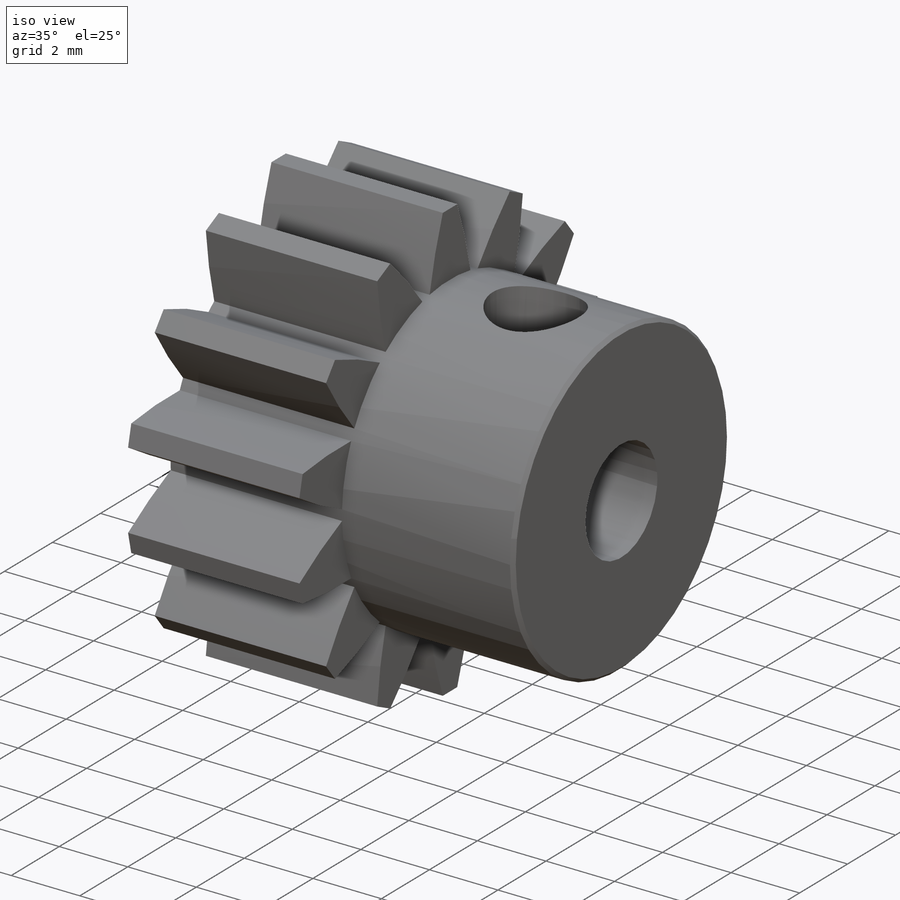
[diagram: iso view]
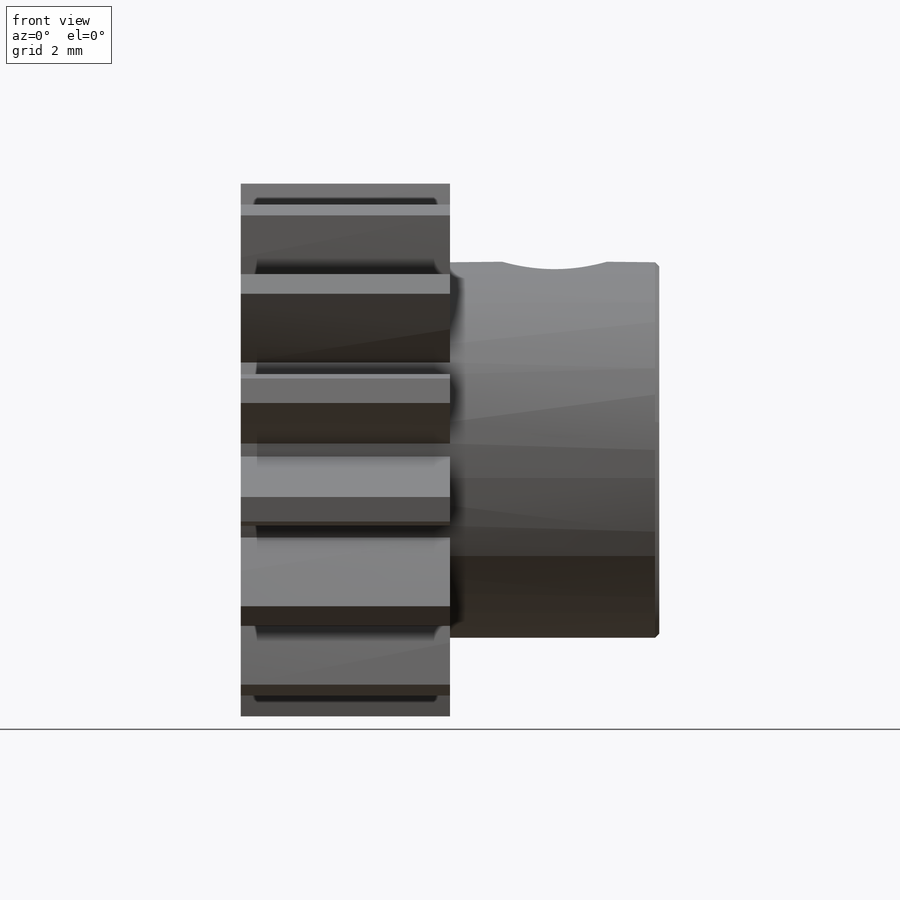
[diagram: front view]
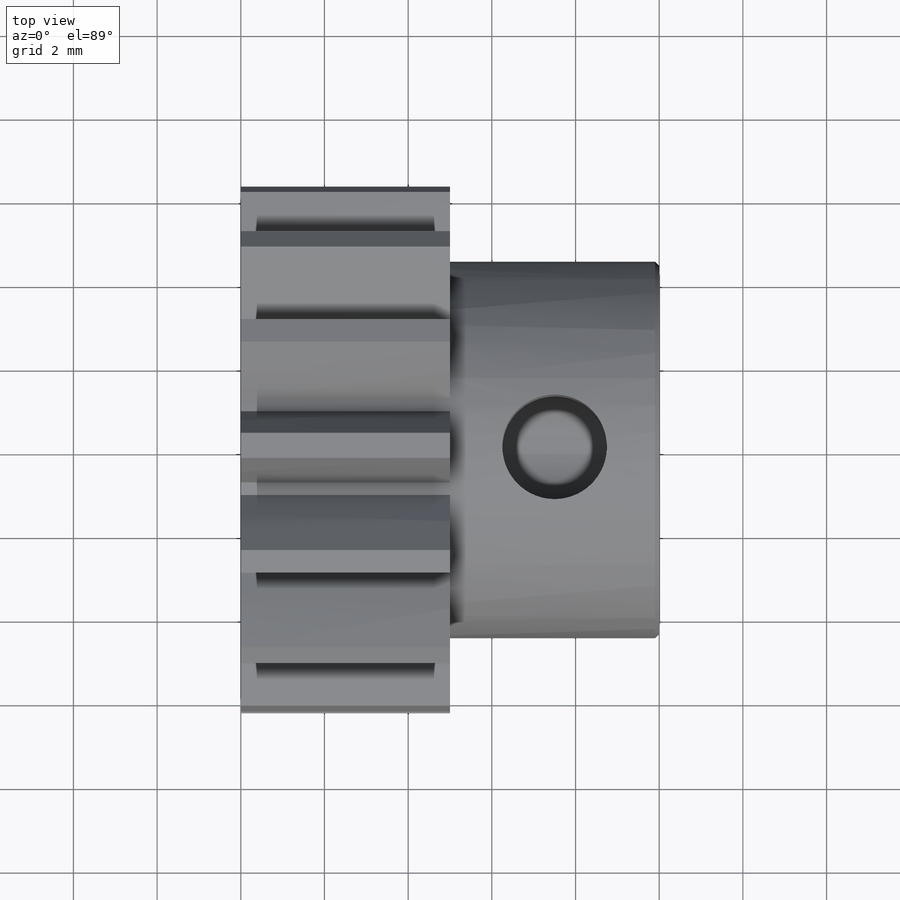
[diagram: top view]
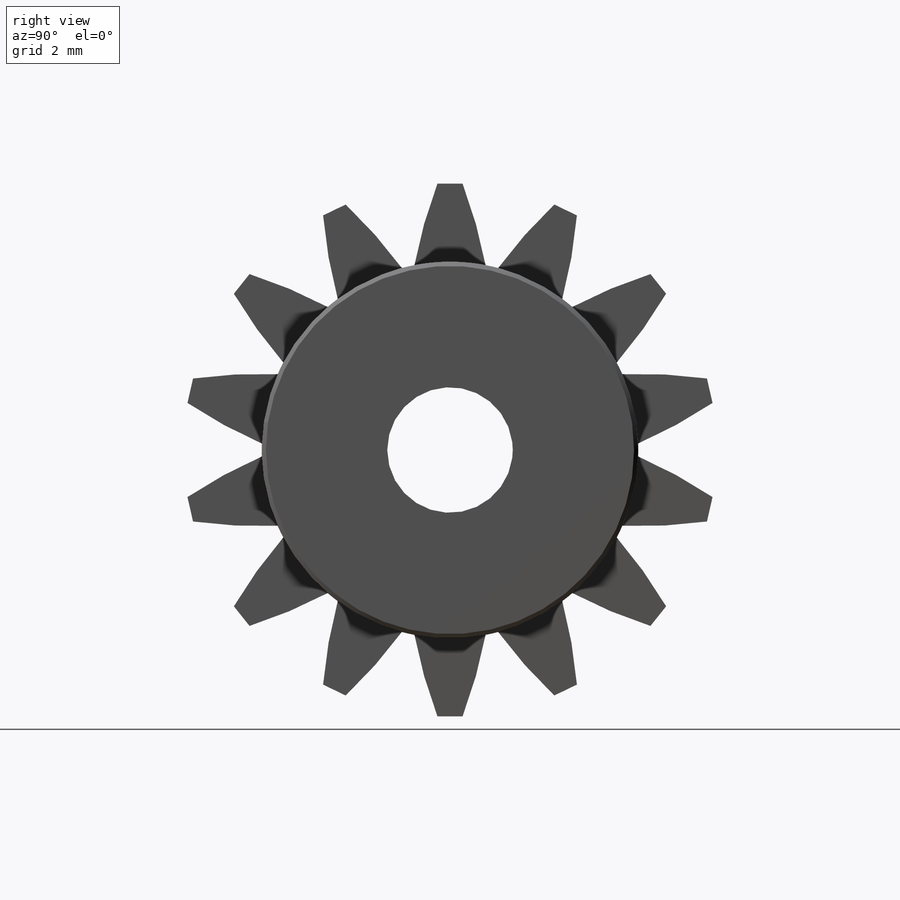
[diagram: right view]
SOLIDWORKS PART (.sldprt)
format: sldprt  version: not decoded by parser v0  size: 354,304 bytes
history: native  units: mm
features: sketch x4, extrude x2, cut_extrude x2, material x1, pattern_circular x1, chamfer x1 (+11 scaffold rows collapsed)
feature tree (22):
  scaffold x11  (default folders/planes/origin — collapsed)
  material  "Plain Carbon Steel"
  sketch  "Sketch1"  dims[c1.D1=~23.003202mm c1.D2=12.75mm c2.D1=9.0mm c2.D4=23.0mm c2.D6=3.0mm c3.D1=3.7mm c3.D3=0.85mm c3.D5=0.3mm c3.D6=~4.411111mm]
  extrude  "Boss-Extrude1"  Depth=10mm
  extrude  "Boss-Extrude2"  [1 undecoded]
  sketch  "Sketch1<3>"  dims[D1=5.0mm]
  pattern_circular  "CirPattern1"  Count=14 Angle=360deg
  sketch  "Sketch2"  dims[D1=2.5mm D2=2.5mm]
  chamfer  "Chamfer1"  Distance=0.1mm Angle=45deg
  cut_extrude  "Cut-Extrude1"  [1 undecoded]
  sketch  "Sketch3"  dims[D1=5.0mm]
  cut_extrude  "Cut-Extrude2"  Depth=0.01mm
decode coverage: 8 of 10 modeling features carry decoded parameters
note: ~ marks probable driven/reference dimensions
note: 2 parameter values undecoded
note: suppression state not decoded; provenance and decode notes live in map.json
